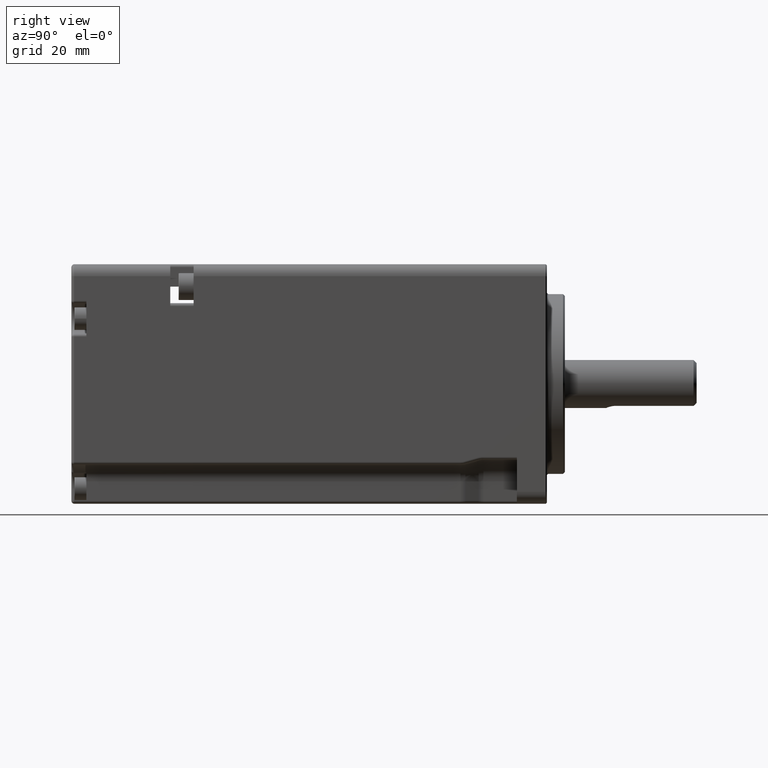
[diagram: clean part render]
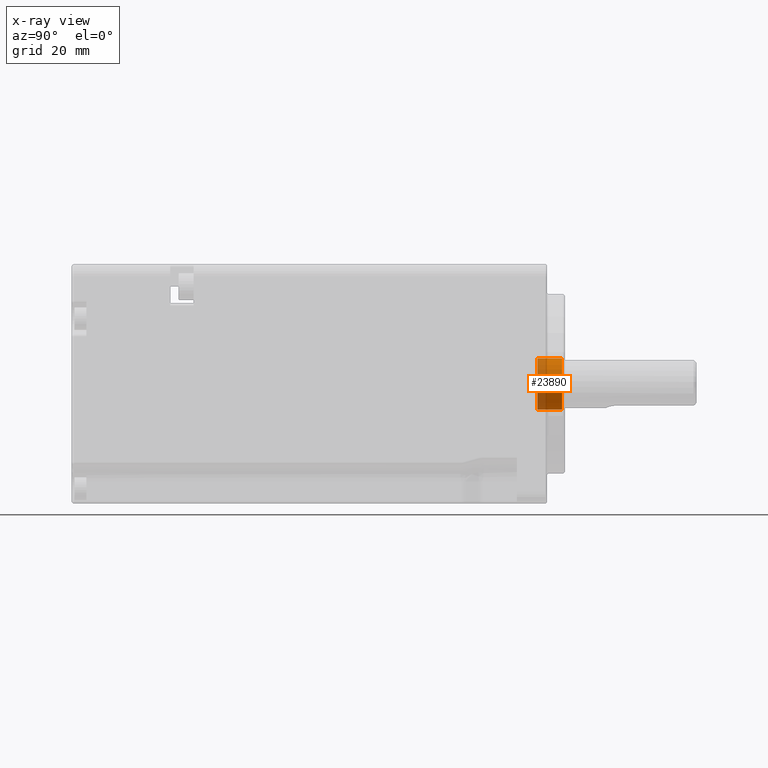
[diagram: x-ray — body ghosted, one internal face saturated and labeled with its STEP entity id]
A machine part, right view, then the same camera in x-ray: the body is ghosted and one INTERNAL B-rep face — a face not visible from any outside direction — is saturated and labeled: STEP entity #23890.
In plain terms, the highlighted cylindrical surface (edge-blend (fillet) strip) has radius 4.25 mm, axis along (0, 1, 0).
Its self-contained STEP definition (entity closure, byte-faithful):
#1424 = DIRECTION ( 'NONE',  ( 7.771561172376096769E-16, 0.000000000000000000, 1.000000000000000000 ) ) ;
#1526 = DIRECTION ( 'NONE',  ( -7.771561172376097755E-16, 0.000000000000000000, -1.000000000000000000 ) ) ;
#1621 = CARTESIAN_POINT ( 'NONE',  ( -7.366368412369083520E-15, 53.40000000000000568, -4.250000000000000888 ) ) ;
#3495 = CARTESIAN_POINT ( 'NONE',  ( -4.406586107167747556E-15, 53.40000000000000568, -4.536716060245468474E-16 ) ) ;
#4502 = CARTESIAN_POINT ( 'NONE',  ( -1.281016305487025104E-15, 53.40000000000000568, 4.249999999999999112 ) ) ;
#4764 = EDGE_CURVE ( 'NONE', #11112, #18286, #17429, .T. ) ;
#6773 = AXIS2_PLACEMENT_3D ( 'NONE', #23370, #19343, #9144 ) ;
#7380 = CARTESIAN_POINT ( 'NONE',  ( 2.782438608622215934E-15, 80.00000000000000000, 4.250000000000000000 ) ) ;
#8854 = DIRECTION ( 'NONE',  ( 1.656611318484115982E-16, 1.000000000000000000, 1.705532353475746316E-17 ) ) ;
#9000 = VERTEX_POINT ( 'NONE', #1621 ) ;
#9144 = DIRECTION ( 'NONE',  ( -7.771561172376096769E-16, 0.000000000000000000, -1.000000000000000000 ) ) ;
#9685 = DIRECTION ( 'NONE',  ( 1.656611318484115982E-16, 1.000000000000000000, 1.705532353475746316E-17 ) ) ;
#9752 = CIRCLE ( 'NONE', #24199, 4.250000000000000000 ) ;
#11112 = VERTEX_POINT ( 'NONE', #4502 ) ;
#11600 = ORIENTED_EDGE ( 'NONE', *, *, #4764, .F. ) ;
#11749 = VECTOR ( 'NONE', #8854, 1000.000000000000000 ) ;
#11892 = EDGE_CURVE ( 'NONE', #11112, #9000, #9752, .T. ) ;
#13139 = CARTESIAN_POINT ( 'NONE',  ( -3.302913498259841102E-15, 80.00000000000000000, -4.250000000000000000 ) ) ;
#13291 = AXIS2_PLACEMENT_3D ( 'NONE', #18820, #23235, #1526 ) ;
#14832 = VECTOR ( 'NONE', #9685, 1000.000000000000000 ) ;
#17329 = EDGE_CURVE ( 'NONE', #9000, #23039, #22963, .T. ) ;
#17413 = CIRCLE ( 'NONE', #13291, 4.250000000000000000 ) ;
#17429 = LINE ( 'NONE', #7380, #14832 ) ;
#18286 = VERTEX_POINT ( 'NONE', #24391 ) ;
#18820 = CARTESIAN_POINT ( 'NONE',  ( -3.720323721050736491E-15, 57.54256729058798214, -3.830187806190653820E-16 ) ) ;
#18956 = FACE_OUTER_BOUND ( 'NONE', #20426, .T. ) ;
#19343 = DIRECTION ( 'NONE',  ( 1.656611318484115982E-16, 1.000000000000000000, 1.705532353475746316E-17 ) ) ;
#20426 = EDGE_LOOP ( 'NONE', ( #11600, #24278, #25403, #23012 ) ) ;
#21656 = EDGE_CURVE ( 'NONE', #23039, #18286, #17413, .T. ) ;
#22880 = DIRECTION ( 'NONE',  ( 1.656611318484115982E-16, 1.000000000000000000, 1.705532353475746316E-17 ) ) ;
#22963 = LINE ( 'NONE', #13139, #11749 ) ;
#23012 = ORIENTED_EDGE ( 'NONE', *, *, #21656, .T. ) ;
#23039 = VERTEX_POINT ( 'NONE', #24236 ) ;
#23235 = DIRECTION ( 'NONE',  ( -1.656611318484115982E-16, -1.000000000000000000, -1.705532353475746316E-17 ) ) ;
#23370 = CARTESIAN_POINT ( 'NONE',  ( 0.000000000000000000, 80.00000000000000000, 1.540743955509788682E-30 ) ) ;
#23890 = ADVANCED_FACE ( 'NONE', ( #18956 ), #25065, .T. ) ;
#24199 = AXIS2_PLACEMENT_3D ( 'NONE', #3495, #22880, #1424 ) ;
#24236 = CARTESIAN_POINT ( 'NONE',  ( -7.023237219310577988E-15, 57.54256729058798214, -4.250000000000000000 ) ) ;
#24278 = ORIENTED_EDGE ( 'NONE', *, *, #11892, .T. ) ;
#24391 = CARTESIAN_POINT ( 'NONE',  ( -1.281016305487025104E-15, 57.54256729058798214, 4.250000000000000000 ) ) ;
#25065 = CYLINDRICAL_SURFACE ( 'NONE', #6773, 4.250000000000000000 ) ;
#25403 = ORIENTED_EDGE ( 'NONE', *, *, #17329, .T. ) ;